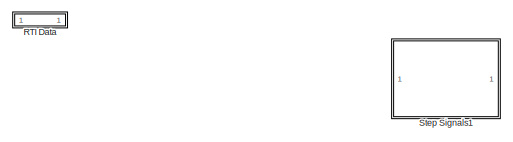
[diagram: root canvas - part 1/2, top left region]
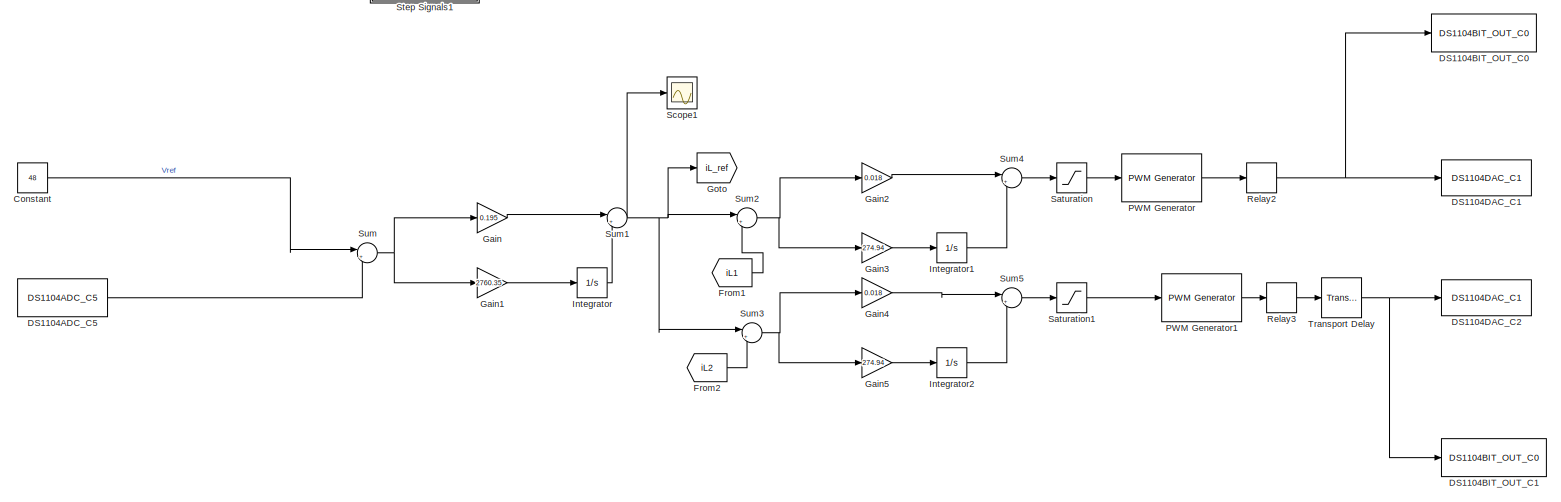
[diagram: root canvas - part 2/2, most of the canvas]
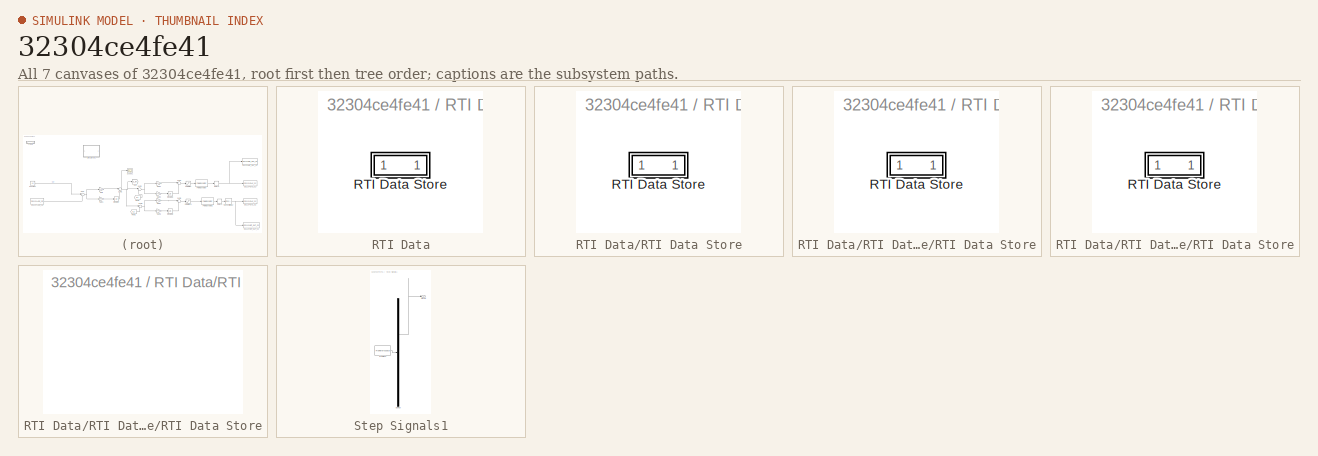
[diagram: thumbnail index - all 7 canvases of the model, root first then tree order]
MODEL slx_32304ce4fe41
KIND model
CONFIG AbsTol = auto
CONFIG EnableMultiTasking = off
CONFIG FixedStep = 0.0001
CONFIG InitFcn = , if any(exist('rtifpga_mdlclblib', 'file') ~= 0), rtifpga_mdlclblib('Init', bdroot); end,\n
CONFIG MaxStep = auto
CONFIG MinStep = auto
CONFIG PostLoadFcn = , if any(exist('dsrtsu_mdlpostloadfcn', 'file') ~= 0), dsrtsu_mdlpostloadfcn('Execute', bdroot); end, \n
CONFIG RelTol = 1e-3
CONFIG SampleTimeConstraint = Unconstrained
CONFIG SolverName = ode1
CONFIG StartTime = 0.0
CONFIG StopTime = Inf
BLOCK [Constant] Constant
  Value = 48
BLOCK [Reference] DS1104ADC_C5  REF=rtilib1104/DS1104 MASTER PPC/DS1104ADC_C5
  SourceBlock = rtilib1104/DS1104 MASTER PPC/DS1104ADC_C5
  SourceProductName = dSPACE RTI1104
  SourceType = RTI
BLOCK [Reference] DS1104BIT_OUT_C0  REF=rtilib1104/DS1104 MASTER PPC/DS1104BIT_OUT_C0
  SourceBlock = rtilib1104/DS1104 MASTER PPC/DS1104BIT_OUT_C0
  SourceProductName = dSPACE RTI1104
  SourceType = RTI
BLOCK [Reference] DS1104BIT_OUT_C1  REF=rtilib1104/DS1104 MASTER PPC/DS1104BIT_OUT_C0
  SourceBlock = rtilib1104/DS1104 MASTER PPC/DS1104BIT_OUT_C0
  SourceProductName = dSPACE RTI1104
  SourceType = RTI
BLOCK [Reference] DS1104DAC_C1  REF=rtilib1104/DS1104 MASTER PPC/DS1104DAC_C1
  SourceBlock = rtilib1104/DS1104 MASTER PPC/DS1104DAC_C1
  SourceProductName = dSPACE RTI1104
  SourceType = RTI
BLOCK [Reference] DS1104DAC_C2  REF=rtilib1104/DS1104 MASTER PPC/DS1104DAC_C1
  SourceBlock = rtilib1104/DS1104 MASTER PPC/DS1104DAC_C1
  SourceProductName = dSPACE RTI1104
  SourceType = RTI
BLOCK [From] From1
  GotoTag = iL1
  TagVisibility = global
BLOCK [From] From2
  GotoTag = iL2
  TagVisibility = global
BLOCK [Gain] Gain
  Gain = 0.195
BLOCK [Gain] Gain1
  Gain = 2760.35
BLOCK [Gain] Gain2
  Gain = 0.018
BLOCK [Gain] Gain3
  Gain = 274.94
BLOCK [Gain] Gain4
  Gain = 0.018
BLOCK [Gain] Gain5
  Gain = 274.94
BLOCK [Goto] Goto
  GotoTag = iL_ref
  TagVisibility = global
BLOCK [Integrator] Integrator
BLOCK [Integrator] Integrator1
BLOCK [Integrator] Integrator2
BLOCK [Reference] PWM Generator  REF=eePwmGenerator/PWM Generator
  SourceBlock = eePwmGenerator/PWM Generator
  SourceType = PWM Generator
BLOCK [Reference] PWM Generator1  REF=eePwmGenerator/PWM Generator
  SourceBlock = eePwmGenerator/PWM Generator
  SourceType = PWM Generator
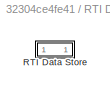
BLOCK [SubSystem] RTI Data
  CopyFcn = if exist('rtidc'), try,  rtidc('DataHostBlockClbCopy', gcbh); catch, disp(['Warning: ''CopyFcn'' for RTI Data block failed: ' lasterr]); end, end,
  DeleteFcn = if exist('rtidc'), try,  rtidc('DataHostBlockClbDelete', gcbh); catch, disp(['Warning: ''DeleteFcn'' for RTI Data block failed: ' lasterr]); end, end,
  LoadFcn = if exist('rtidc'), try,  rtidc('DataHostBlockClbLoad', gcbh); catch, disp(['Warning: ''LoadFcn'' for RTI Data block failed: ' lasterr]); end, end,
  ModelCloseFcn = if exist('rtidc'), try,  rtidc('DataHostBlockClbModelClose', gcbh); catch, disp(['Warning: ''ModelCloseFcn'' for RTI Data block failed: ' lasterr]); end, end,
  NameChangeFcn = if exist('rtidc'), try,  rtidc('DataHostBlockClbNameChange', gcbh); catch, disp(['Warning: ''NameChangeFcn'' for RTI Data block failed: ' lasterr]); end, end,
  PostSaveFcn = if exist('rtidc'), try,  rtidc('DataHostBlockClbPostSave', gcbh); catch, disp(['Warning: ''PostSaveFcn'' for RTI Data block failed: ' lasterr]); end, end,
  PreSaveFcn = if exist('rtidc'), try,  rtidc('DataHostBlockClbPreSave', gcbh); catch, disp(['Warning: ''PreSaveFcn'' for RTI Data block failed: ' lasterr]); end, end,
  Tag = struct('RTIDataServer',struct('RTIDataServerVs','2','RTIModelDescription','struct(''main'',''PI'',''sub'',''PI'',''isMp'',0)'))
BLOCK [SubSystem] RTI Data/RTI Data Store
  Tag = struct('private',struct('version',struct('dsVer',uint32(2)),'access',struct('modified',['03-Jul-2025 17:44:51'],'type','Model','isPerm',1)),'public',struct('main',struct('data',[]),'sub',struct('name','','data',[])))
BLOCK [SubSystem] RTI Data/RTI Data Store/RTI Data Store
BLOCK [SubSystem] RTI Data/RTI Data Store/RTI Data Store/RTI Data Store
BLOCK [SubSystem] RTI Data/RTI Data Store/RTI Data Store/RTI Data Store/RTI Data Store
BLOCK [Relay] Relay2
BLOCK [Relay] Relay3
BLOCK [Saturate] Saturation
  LowerLimit = 0.1
  UpperLimit = 0.9
BLOCK [Saturate] Saturation1
  LowerLimit = 0.1
  UpperLimit = 0.9
BLOCK [Scope] Scope1
  Floating = off
  NumInputPorts = 1
  ScopeSpecificationString = Simulink.scopes.TimeScopeBlockCfg('CurrentConfiguration', extmgr.ConfigurationSet(extmgr.Configuration('Core','General UI',true),extmgr.Configuration('Core','Source UI',true),extmgr.Configuration('Sources','WiredSimulink',true),extmgr.Configuration('Visuals','Time Domain',true,'SerializedDisplays',{struct('MinYLimReal','7.31759','MaxYLimReal','27.74166','YLabelReal','','MinYLimMag','7.31759','MaxY...<+1378ch>
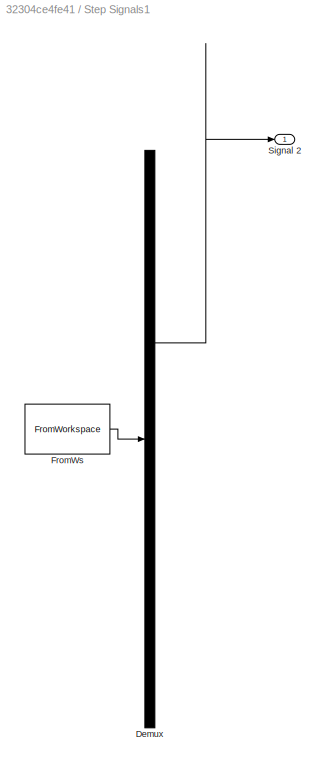
BLOCK [SubSystem] Step Signals1
  ClipboardFcn = sigbuilder_block('clipboard');
  CloseFcn = sigbuilder_block('close');
  Commented = on
  ContinueFcn = sigbuilder_block('continue');
  CopyFcn = sigbuilder_block('copy');
  DeleteFcn = sigbuilder_block('delete');
  LoadFcn = sigbuilder_block('load');
  MaskHideContents = on
  ModelCloseFcn = sigbuilder_block('modelClose');
  NameChangeFcn = sigbuilder_block('namechange');
  OpenFcn = sigbuilder_block('open',[6 36 1428 675.75 ]);
  PauseFcn = sigbuilder_block('pause');
  PreSaveFcn = sigbuilder_block('preSave');
  StartFcn = sigbuilder_block('start');
  StopFcn = sigbuilder_block('stop');
  Tag = STV Subsys
BLOCK [Demux] Step Signals1/Demux
  DisplayOption = none
  Outputs = 1
  Tag = STV Demux
BLOCK [FromWorkspace] Step Signals1/FromWs
  Tag = STV FromWs
  VariableName = tuvar
BLOCK [Outport] Step Signals1/Signal 2
  Tag = STV Outport
BLOCK [Sum] Sum
  Inputs = |+-
BLOCK [Sum] Sum1
  Inputs = |++
BLOCK [Sum] Sum2
  Inputs = |+-
BLOCK [Sum] Sum3
  Inputs = |+-
BLOCK [Sum] Sum4
  Inputs = |++
BLOCK [Sum] Sum5
  Inputs = |++
BLOCK [TransportDelay] Transport Delay
  DelayTime = 1e-5
LINE Constant:1 -> Sum:1
LINE DS1104ADC_C5:1 -> Sum:2
LINE From1:1 -> Sum2:2
LINE From2:1 -> Sum3:2
LINE Gain1:1 -> Integrator:1
LINE Gain2:1 -> Sum4:1
LINE Gain3:1 -> Integrator1:1
LINE Gain4:1 -> Sum5:1
LINE Gain5:1 -> Integrator2:1
LINE Gain:1 -> Sum1:1
LINE Integrator1:1 -> Sum4:2
LINE Integrator2:1 -> Sum5:2
LINE Integrator:1 -> Sum1:2
LINE PWM Generator1:1 -> Relay3:1
LINE PWM Generator:1 -> Relay2:1
NET Relay2:1 -> DS1104BIT_OUT_C0:1, DS1104DAC_C1:1
LINE Relay3:1 -> Transport Delay:1
LINE Saturation1:1 -> PWM Generator1:1
LINE Saturation:1 -> PWM Generator:1
NET Sum1:1 -> Goto:1, Scope1:1, Sum2:1, Sum3:1
NET Sum2:1 -> Gain2:1, Gain3:1
NET Sum3:1 -> Gain4:1, Gain5:1
LINE Sum4:1 -> Saturation:1
LINE Sum5:1 -> Saturation1:1
NET Sum:1 -> Gain1:1, Gain:1
NET Transport Delay:1 -> DS1104BIT_OUT_C1:1, DS1104DAC_C2:1
note: NET lines group one-source signal fan-out (src -> all destinations, sorted); 1:1 wires keep LINE
